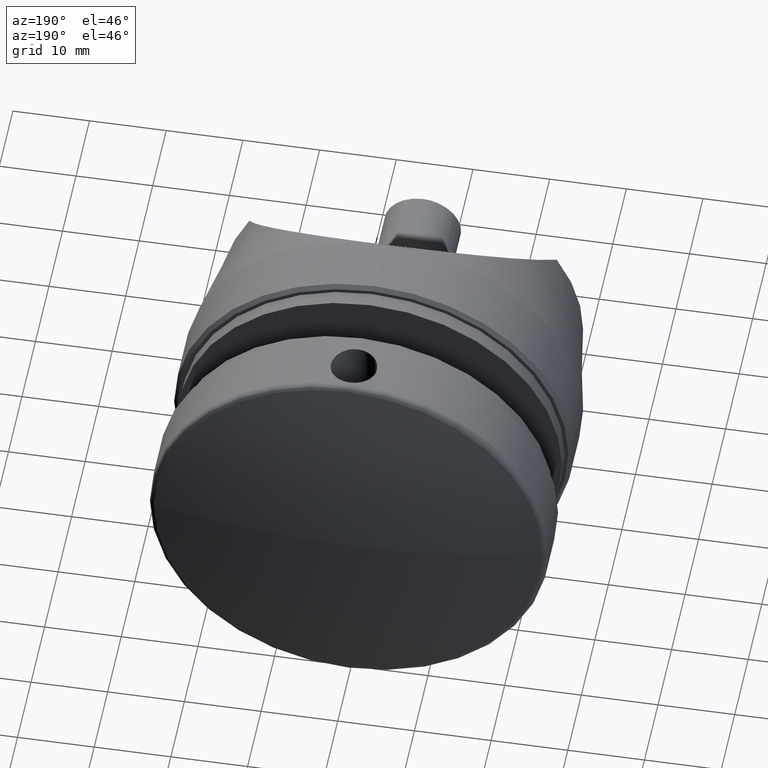
[diagram: clean part render]
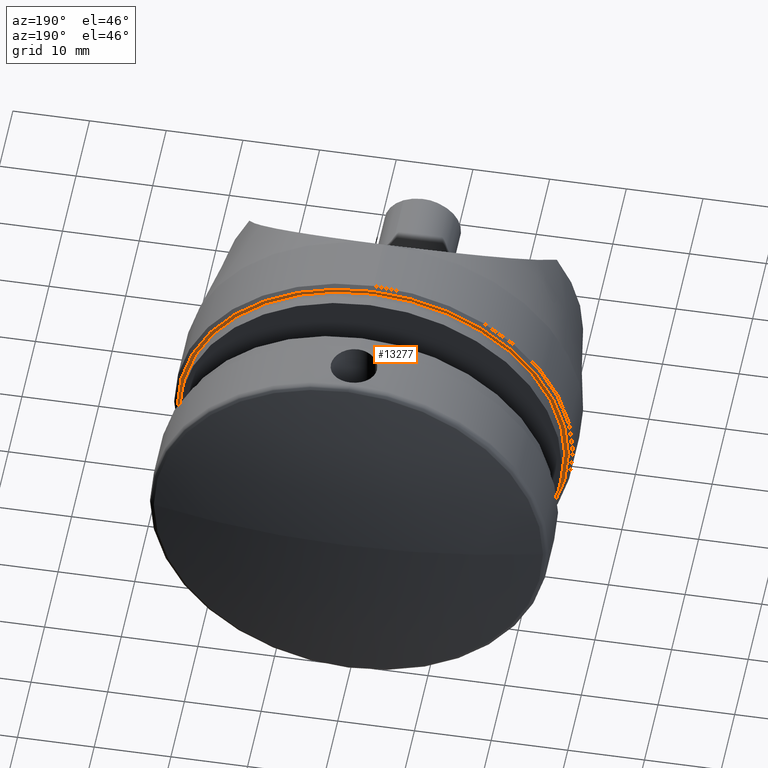
[diagram: same view with one face highlighted and labeled with its STEP entity id]
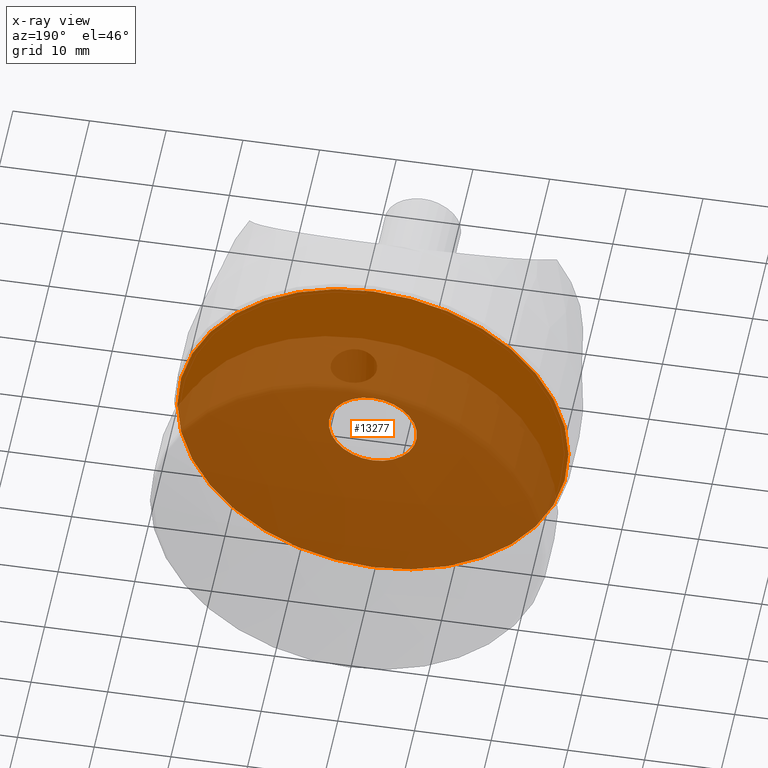
[diagram: x-ray of the same camera — body ghosted, the highlighted face saturated]
A machine part, auxiliary view. The second image highlights one B-rep face of the part: STEP entity #13277.
The next image is the same camera in x-ray: the body ghosted, the highlighted face saturated — about 76% of this face is hidden behind the body in this view.
In plain terms, the highlighted planar face has unit normal (0, 1, 0).
Its self-contained STEP definition (entity closure, byte-faithful):
#191 = CARTESIAN_POINT ( 'NONE',  ( 7.041719095097278907E-16, 4.000000000000000000, -5.749999999999998224 ) ) ;
#213 = VERTEX_POINT ( 'NONE', #379 ) ;
#379 = CARTESIAN_POINT ( 'NONE',  ( 0.000000000000000000, 4.000000000000000000, -25.49999999999999289 ) ) ;
#767 = CARTESIAN_POINT ( 'NONE',  ( 0.000000000000000000, 4.000000000000000000, 0.000000000000000000 ) ) ;
#866 = DIRECTION ( 'NONE',  ( 0.000000000000000000, 1.000000000000000000, 0.000000000000000000 ) ) ;
#1001 = ORIENTED_EDGE ( 'NONE', *, *, #4313, .T. ) ;
#1843 = VERTEX_POINT ( 'NONE', #2313 ) ;
#1940 = FACE_OUTER_BOUND ( 'NONE', #9447, .T. ) ;
#2313 = CARTESIAN_POINT ( 'NONE',  ( 3.153465507804433615E-15, 4.000000000000000000, 25.49999999999999289 ) ) ;
#3289 = ORIENTED_EDGE ( 'NONE', *, *, #4625, .T. ) ;
#3590 = EDGE_CURVE ( 'NONE', #6133, #14271, #15884, .T. ) ;
#3736 = AXIS2_PLACEMENT_3D ( 'NONE', #13559, #11254, #12498 ) ;
#4313 = EDGE_CURVE ( 'NONE', #1843, #213, #13514, .T. ) ;
#4464 = AXIS2_PLACEMENT_3D ( 'NONE', #7733, #12661, #5312 ) ;
#4602 = CIRCLE ( 'NONE', #14875, 25.49999999999999289 ) ;
#4625 = EDGE_CURVE ( 'NONE', #14271, #6133, #5221, .T. ) ;
#4849 = CARTESIAN_POINT ( 'NONE',  ( 0.000000000000000000, 4.000000000000000000, 0.000000000000000000 ) ) ;
#5221 = CIRCLE ( 'NONE', #4464, 5.749999999999998224 ) ;
#5312 = DIRECTION ( 'NONE',  ( 0.000000000000000000, 0.000000000000000000, 1.000000000000000000 ) ) ;
#5967 = EDGE_LOOP ( 'NONE', ( #3289, #9995 ) ) ;
#6133 = VERTEX_POINT ( 'NONE', #191 ) ;
#6456 = CARTESIAN_POINT ( 'NONE',  ( 0.000000000000000000, 4.000000000000000000, 5.749999999999998224 ) ) ;
#7413 = ORIENTED_EDGE ( 'NONE', *, *, #15685, .T. ) ;
#7733 = CARTESIAN_POINT ( 'NONE',  ( 0.000000000000000000, 4.000000000000000000, 0.000000000000000000 ) ) ;
#8031 = DIRECTION ( 'NONE',  ( 0.000000000000000000, 1.000000000000000000, 0.000000000000000000 ) ) ;
#8988 = AXIS2_PLACEMENT_3D ( 'NONE', #11670, #8031, #9264 ) ;
#9264 = DIRECTION ( 'NONE',  ( 0.000000000000000000, -0.000000000000000000, 1.000000000000000000 ) ) ;
#9443 = DIRECTION ( 'NONE',  ( 0.000000000000000000, 0.000000000000000000, 1.000000000000000000 ) ) ;
#9447 = EDGE_LOOP ( 'NONE', ( #7413, #1001 ) ) ;
#9732 = DIRECTION ( 'NONE',  ( 0.000000000000000000, 1.000000000000000000, 0.000000000000000000 ) ) ;
#9995 = ORIENTED_EDGE ( 'NONE', *, *, #3590, .T. ) ;
#10566 = FACE_BOUND ( 'NONE', #5967, .T. ) ;
#11254 = DIRECTION ( 'NONE',  ( -0.000000000000000000, -1.000000000000000000, -0.000000000000000000 ) ) ;
#11670 = CARTESIAN_POINT ( 'NONE',  ( 5.250000000000000000, 4.000000000000000000, 0.000000000000000000 ) ) ;
#12498 = DIRECTION ( 'NONE',  ( 0.000000000000000000, 0.000000000000000000, 1.000000000000000000 ) ) ;
#12661 = DIRECTION ( 'NONE',  ( -0.000000000000000000, -1.000000000000000000, -0.000000000000000000 ) ) ;
#13112 = PLANE ( 'NONE',  #8988 ) ;
#13277 = ADVANCED_FACE ( 'NONE', ( #10566, #1940 ), #13112, .T. ) ;
#13316 = DIRECTION ( 'NONE',  ( 0.000000000000000000, 0.000000000000000000, 1.000000000000000000 ) ) ;
#13514 = CIRCLE ( 'NONE', #15763, 25.49999999999999289 ) ;
#13559 = CARTESIAN_POINT ( 'NONE',  ( 0.000000000000000000, 4.000000000000000000, 0.000000000000000000 ) ) ;
#14271 = VERTEX_POINT ( 'NONE', #6456 ) ;
#14875 = AXIS2_PLACEMENT_3D ( 'NONE', #767, #866, #9443 ) ;
#15685 = EDGE_CURVE ( 'NONE', #213, #1843, #4602, .T. ) ;
#15763 = AXIS2_PLACEMENT_3D ( 'NONE', #4849, #9732, #13316 ) ;
#15884 = CIRCLE ( 'NONE', #3736, 5.749999999999998224 ) ;